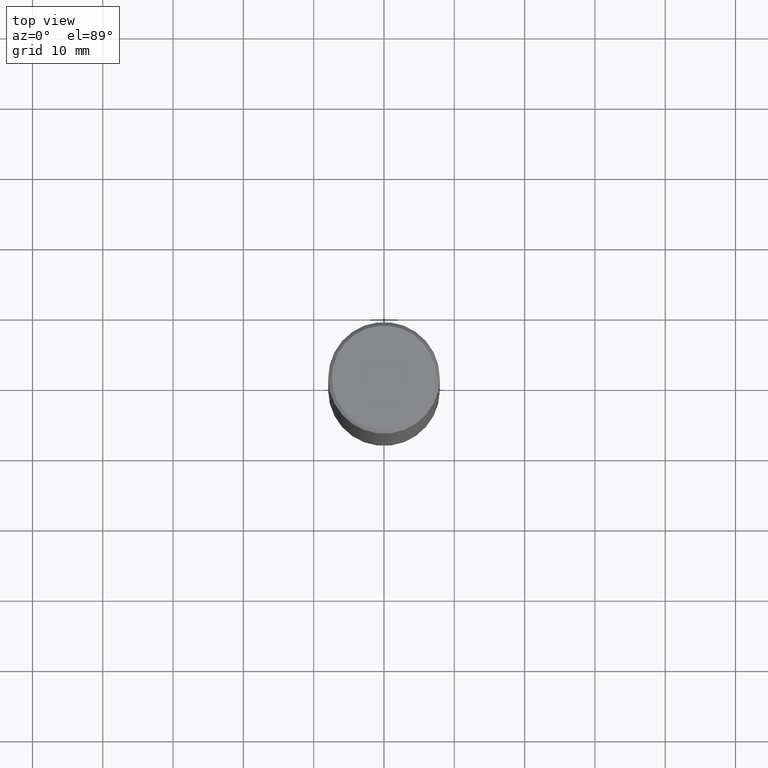
[diagram: clean part render]
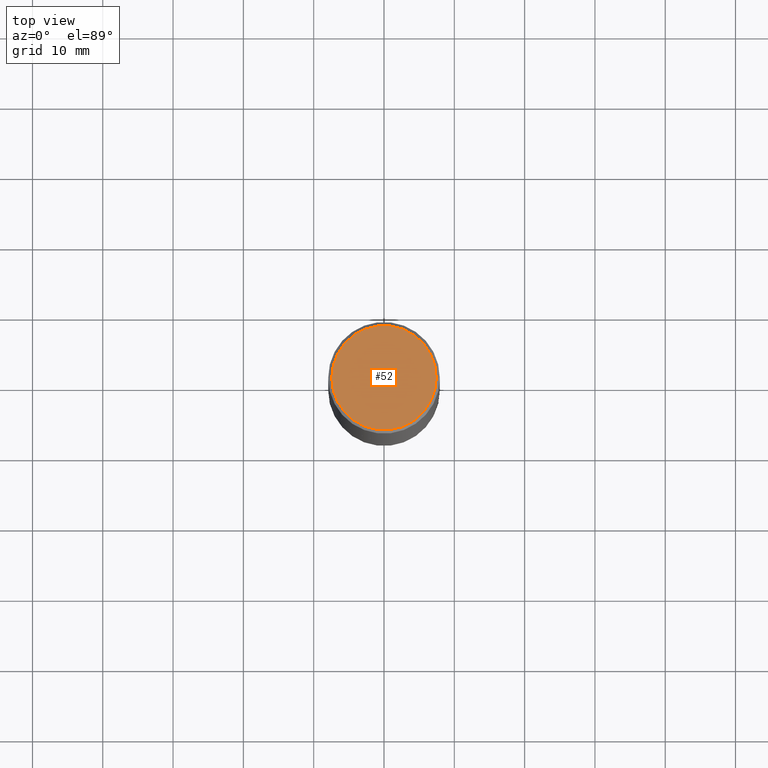
[diagram: same view with one face highlighted and labeled with its STEP entity id]
A machine part, top view. The second image highlights one B-rep face of the part: STEP entity #52.
In plain terms, the highlighted planar face has unit normal (0, -0, -1).
Its self-contained STEP definition (entity closure, byte-faithful):
#22 = CIRCLE ( 'NONE', #265, 0.2924999999999998712 ) ;
#43 = CARTESIAN_POINT ( 'NONE',  ( -6.263108486011318528E-46, 8.942059022282683748E-32, 2.561107494060246767E-17 ) ) ;
#52 = ADVANCED_FACE ( 'NONE', ( #190 ), #214, .F. ) ;
#70 = EDGE_LOOP ( 'NONE', ( #100, #105 ) ) ;
#85 = AXIS2_PLACEMENT_3D ( 'NONE', #43, #168, #171 ) ;
#92 = DIRECTION ( 'NONE',  ( 2.438088387897960049E-29, -3.491481338843145188E-15, -1.000000000000000000 ) ) ;
#100 = ORIENTED_EDGE ( 'NONE', *, *, #283, .T. ) ;
#105 = ORIENTED_EDGE ( 'NONE', *, *, #210, .T. ) ;
#116 = AXIS2_PLACEMENT_3D ( 'NONE', #385, #92, #312 ) ;
#138 = CARTESIAN_POINT ( 'NONE',  ( 0.2924999999999998712, -2.110215457714319142E-15, 2.561107494061698764E-17 ) ) ;
#141 = DIRECTION ( 'NONE',  ( 1.000000000000000000, -6.982962677686266711E-15, 4.876067333457691719E-29 ) ) ;
#157 = CIRCLE ( 'NONE', #85, 0.2924999999999998712 ) ;
#168 = DIRECTION ( 'NONE',  ( -2.445468806185136597E-29, 3.491481338843145583E-15, 1.000000000000000000 ) ) ;
#171 = DIRECTION ( 'NONE',  ( 1.000000000000000000, -6.982962677686266711E-15, 4.876067333457691719E-29 ) ) ;
#174 = CARTESIAN_POINT ( 'NONE',  ( -0.2924999999999998712, 2.077431396611663794E-15, 2.561107494058806172E-17 ) ) ;
#190 = FACE_OUTER_BOUND ( 'NONE', #70, .T. ) ;
#191 = VERTEX_POINT ( 'NONE', #138 ) ;
#210 = EDGE_CURVE ( 'NONE', #191, #276, #22, .T. ) ;
#214 = PLANE ( 'NONE',  #116 ) ;
#260 = CARTESIAN_POINT ( 'NONE',  ( -6.263108486011318528E-46, 8.942059022282683748E-32, 2.561107494060246767E-17 ) ) ;
#265 = AXIS2_PLACEMENT_3D ( 'NONE', #260, #389, #141 ) ;
#276 = VERTEX_POINT ( 'NONE', #174 ) ;
#283 = EDGE_CURVE ( 'NONE', #276, #191, #157, .T. ) ;
#312 = DIRECTION ( 'NONE',  ( -1.000000000000000000, 6.982962677686265922E-15, -4.876176775795935793E-29 ) ) ;
#385 = CARTESIAN_POINT ( 'NONE',  ( 2.042516583223232145E-15, 0.2924999999999998712, -1.008452754141318342E-15 ) ) ;
#389 = DIRECTION ( 'NONE',  ( -2.445468806185136597E-29, 3.491481338843145583E-15, 1.000000000000000000 ) ) ;